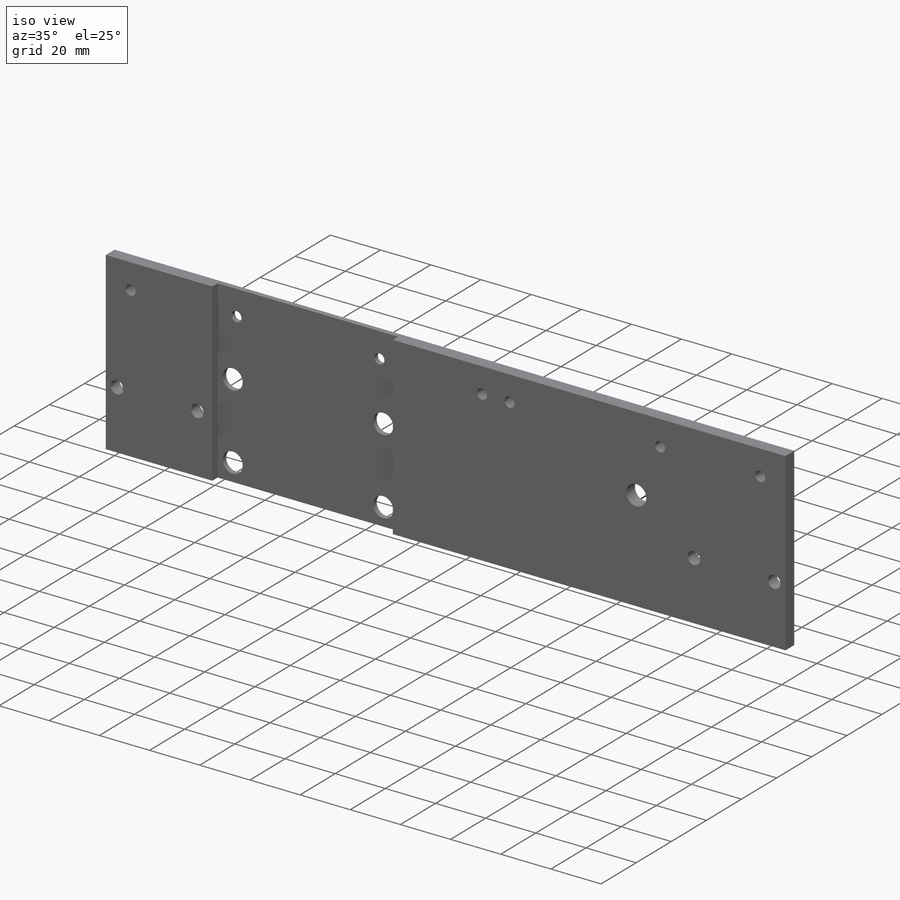
[diagram: iso view]
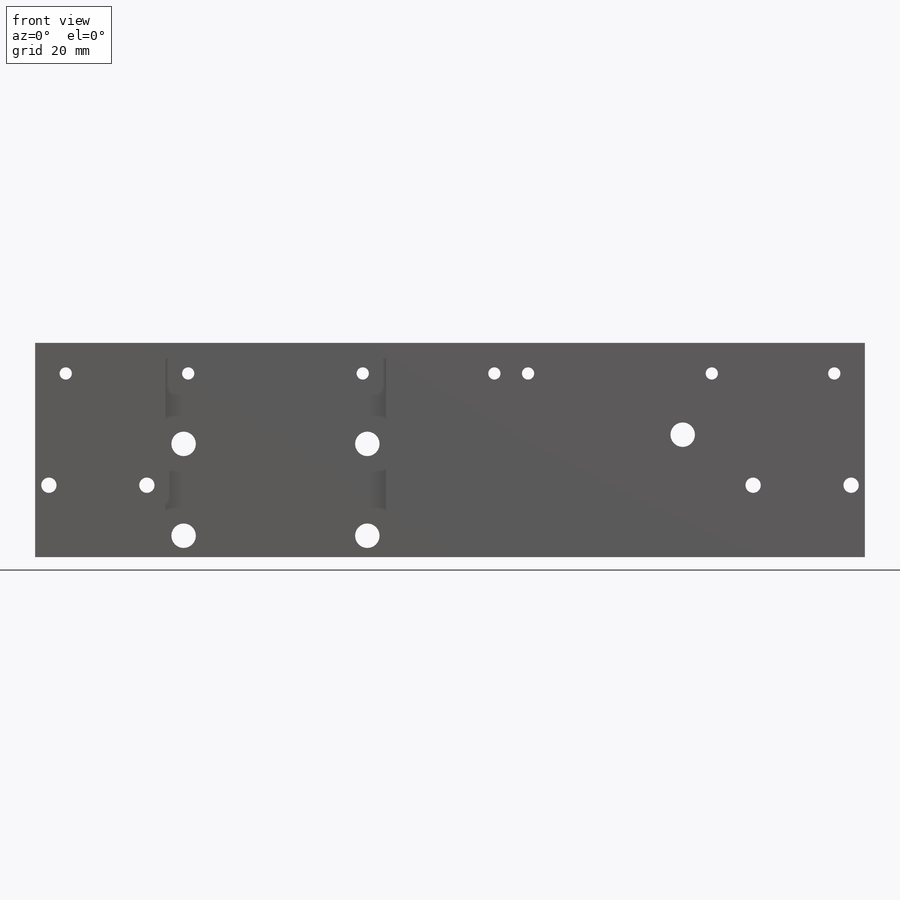
[diagram: front view]
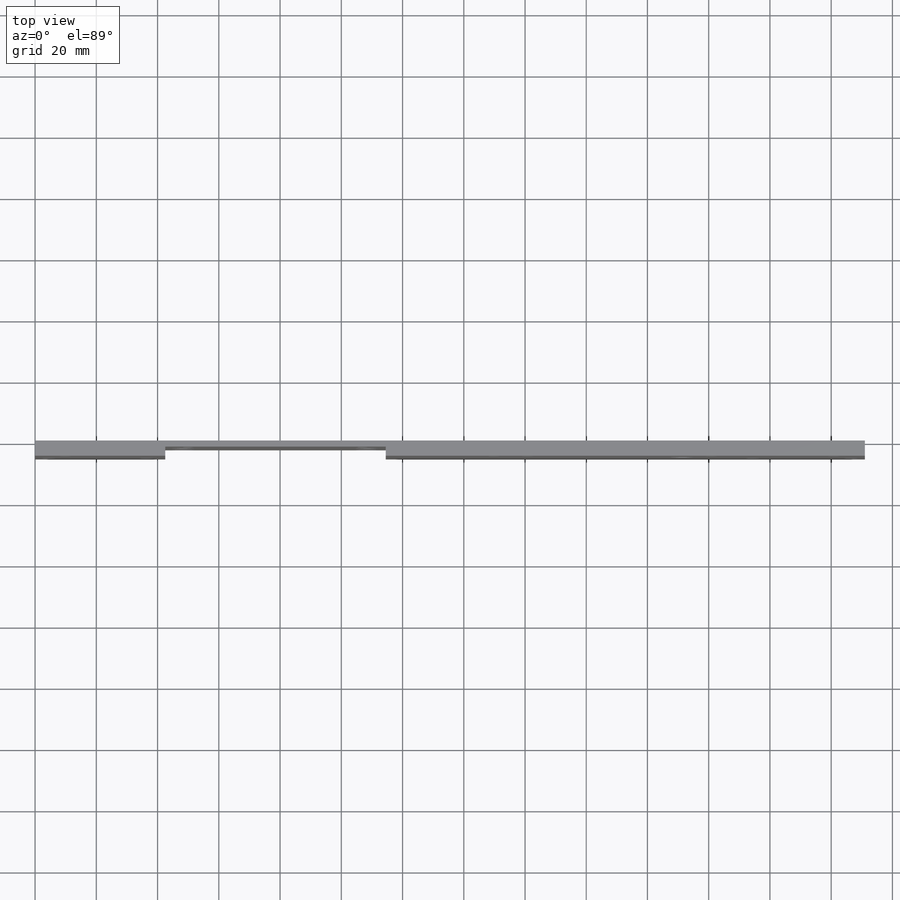
[diagram: top view]
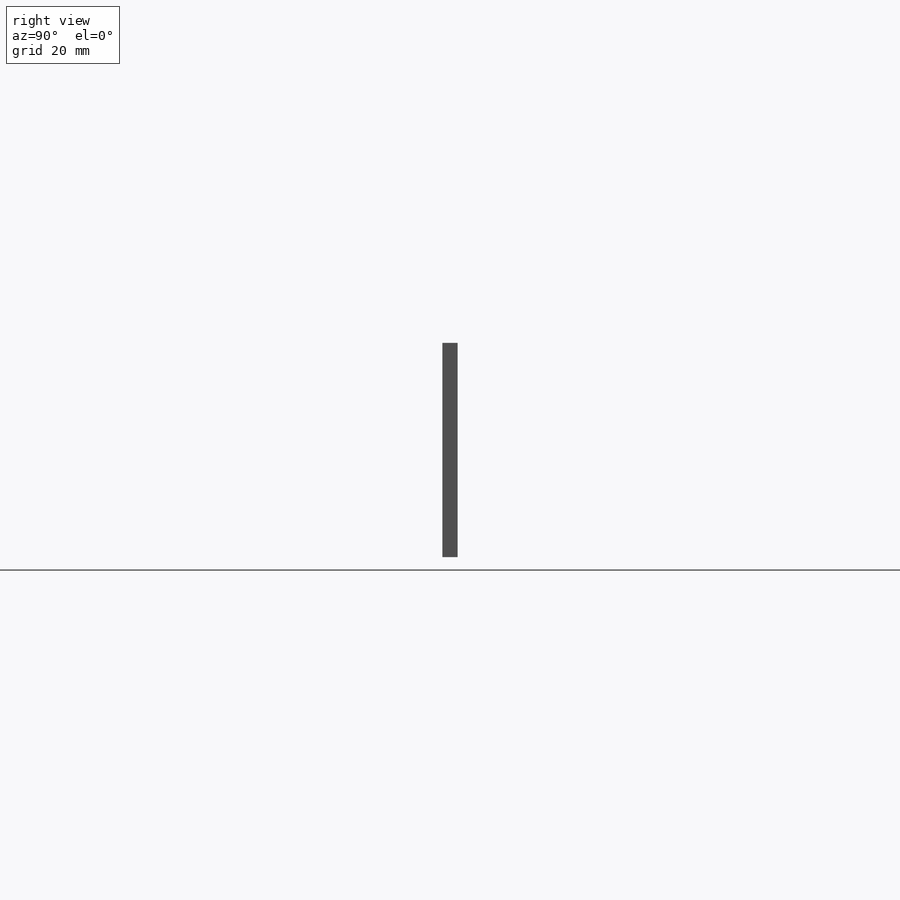
[diagram: right view]
SOLIDWORKS PART (.sldprt)
format: sldprt  version: not decoded by parser v0  size: 289,280 bytes
history: native  units: mm
features: sketch x8, cut_extrude x7, plane x3, material x1, extrude x1 (+9 scaffold rows collapsed)
feature tree (29):
  scaffold x9  (default folders/planes/origin — collapsed)
  material  "Material <nicht festgelegt>"
  plane  "Ebene vorne"
  plane  "Ebene oben"
  plane  "Ebene rechts"
  sketch  "Skizze1"  dims[D1=271.0mm D2=70.0mm]
  extrude  "Aufsatz-Linear austragen1"  Depth=5mm
  sketch  "Skizze2"  dims[D1=72.0mm D2=42.5mm]
  cut_extrude  "Schnitt-Linear austragen1"  Depth=3mm
  sketch  "Skizze3"  dims[c1.D1=8.0mm c1.D2=7.0mm c1.D3=48.5mm c1.D4=60.0mm c2.D2=7.0mm c2.D5=~81.052838mm c3.D2=30.0mm c3.D5=7.0mm]
  cut_extrude  "Schnitt-Linear austragen2"  Depth=10mm
  sketch  "Skizze4"  dims[c1.D1=5.0mm c1.D2=13.8mm c1.D3=4.63mm c2.D2=4.5mm c2.D3=23.5mm c2.D4=32.0mm]
  cut_extrude  "Schnitt-Linear austragen3"  Depth=10mm
  sketch  "Skizze5"  dims[D4=5.0mm D1=23.5mm D2=4.5mm D3=32.0mm]
  cut_extrude  "Schnitt-Linear austragen4"  Depth=10mm
  sketch  "Skizze6"  dims[c1.D1=4.0mm c1.D2=10.0mm c1.D3=~15.138846mm c2.D3=90.0deg c3.D3=10.0mm c3.D4=50.0mm c3.D5=10.0mm c3.D6=50.0mm c3.D7=110.0mm c3.D8=7.5mm]
  cut_extrude  "Schnitt-Linear austragen5"  Depth=10mm
  sketch  "Skizze7"  dims[D3=8.0mm D1=30.0mm D2=59.5mm]
  cut_extrude  "Schnitt-Linear austragen6"  Depth=10mm
  sketch  "Skizze8"  dims[D3=4.0mm D1=10.0mm D2=150.0mm]
  cut_extrude  "Schnitt-Linear austragen7"  Depth=10mm
decode coverage: 16 of 16 modeling features carry decoded parameters
note: ~ marks probable driven/reference dimensions
note: suppression state not decoded; provenance and decode notes live in map.json
